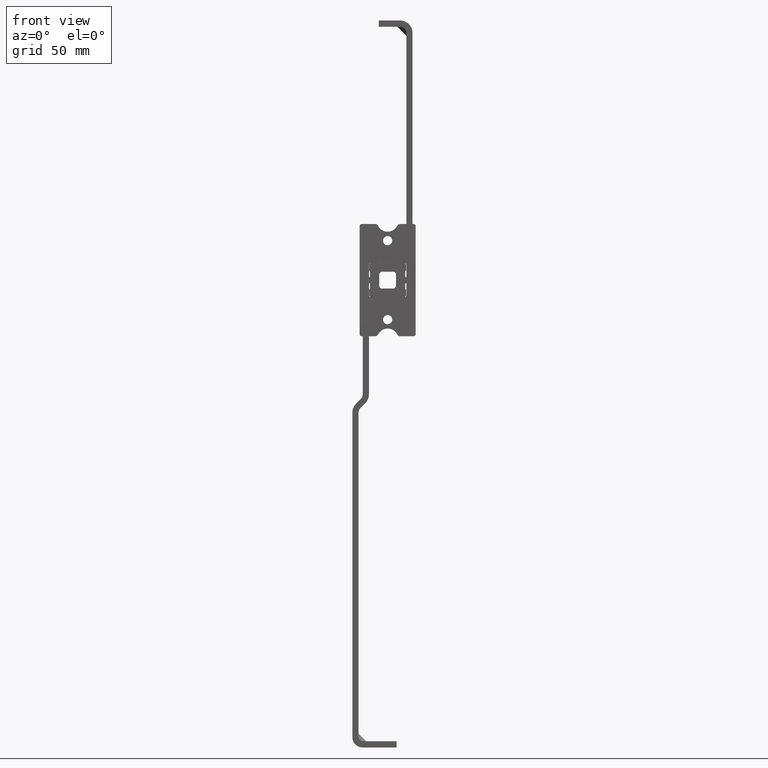
[diagram: clean part render]
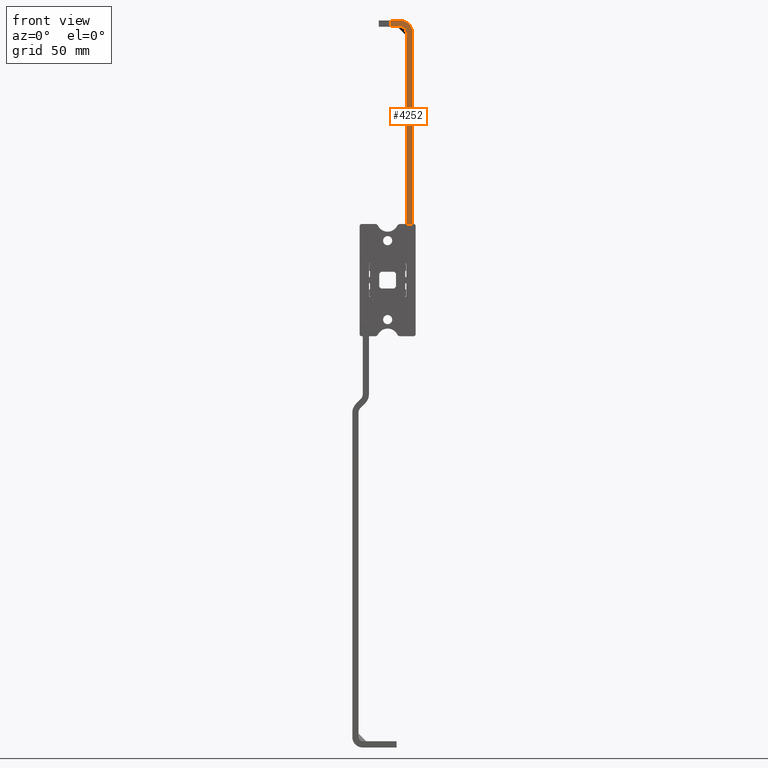
[diagram: same view with one face highlighted and labeled with its STEP entity id]
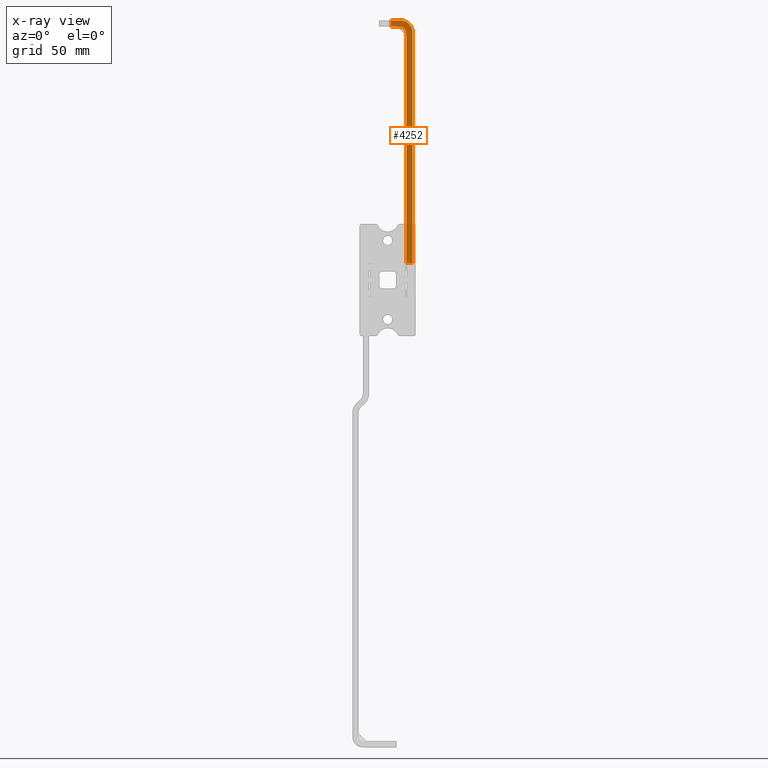
[diagram: x-ray of the same camera — body ghosted, the highlighted face saturated]
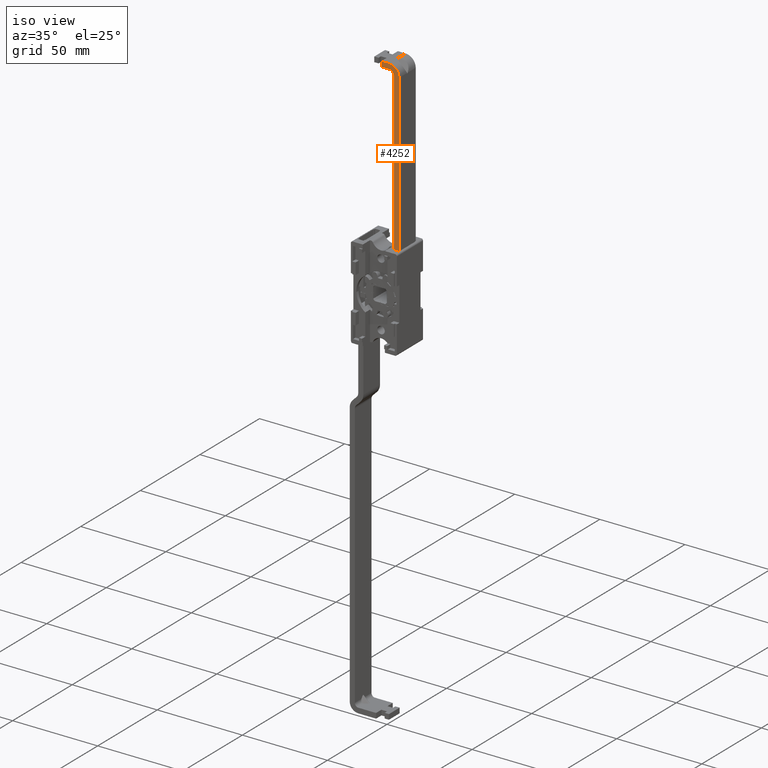
[diagram: same view with one face highlighted and labeled with its STEP entity id]
A machine part, front view. The second image highlights one B-rep face of the part: STEP entity #4252.
The next image is the same camera in x-ray: the body ghosted, the highlighted face saturated — about 0% of this face is hidden behind the body in this view.
A second angle (iso view) of the same face is appended — the face is thin or edge-on in the first view.
In plain terms, the highlighted face is a freeform B-spline surface patch.
Its self-contained STEP definition (entity closure, byte-faithful):
#2934=CARTESIAN_POINT('',(1.399999685016894,-7.000000332482269,125.000005937181600));
#2935=VERTEX_POINT('',#2934);
#2942=CARTESIAN_POINT('',(1.399999685016894,-7.000000332482269,122.000005794689400));
#2943=VERTEX_POINT('',#2942);
#2949=CARTESIAN_POINT('',(1.399999685016894,-7.000000332482269,122.000005794689400));
#2950=CARTESIAN_POINT('',(1.399999685016894,-7.000000332482269,125.000005937181600));
#2951=QUASI_UNIFORM_CURVE('',1,(#2949,#2950),.UNSPECIFIED.,.F.,.U.);
#2952=EDGE_CURVE('',#2943,#2935,#2951,.T.);
#3810=CARTESIAN_POINT('',(11.900000183740159,-7.000000332482220,8.180006222166409));
#3811=VERTEX_POINT('',#3810);
#3817=CARTESIAN_POINT('',(8.900000041247800,-7.000000332482220,8.180006222166409));
#3818=VERTEX_POINT('',#3817);
#3819=CARTESIAN_POINT('',(8.900000041247800,-7.000000332482220,8.180006222166409));
#3820=CARTESIAN_POINT('',(11.900000183740159,-7.000000332482220,8.180006222166409));
#3821=QUASI_UNIFORM_CURVE('',1,(#3819,#3820),.UNSPECIFIED.,.F.,.U.);
#3822=EDGE_CURVE('',#3818,#3811,#3821,.T.);
#4087=CARTESIAN_POINT('',(5.899999898755601,-7.000000332482269,122.000005794689400));
#4088=VERTEX_POINT('',#4087);
#4095=CARTESIAN_POINT('',(8.900000044703019,-7.000000332482269,118.999861671069790));
#4096=VERTEX_POINT('',#4095);
#4102=CARTESIAN_POINT('',(8.900000044703024,-7.000000332482269,118.999861671069790));
#4103=CARTESIAN_POINT('',(8.900059682800265,-7.000000332482269,120.242544587923970));
#4104=CARTESIAN_POINT('',(8.021371249920554,-7.000000332482269,121.121275191306690));
#4105=CARTESIAN_POINT('',(7.142682817040841,-7.000000332482269,122.000005794689430));
#4106=CARTESIAN_POINT('',(5.899999898755601,-7.000000332482269,122.000005794689400));
#4114=(BOUNDED_CURVE()B_SPLINE_CURVE(2,(#4102,#4103,#4104,#4105,#4106),.UNSPECIFIED.,.F.,.U.)B_SPLINE_CURVE_WITH_KNOTS((3,2,3),(0.0,0.500000000000000,1.0),.UNSPECIFIED.)CURVE()GEOMETRIC_REPRESENTATION_ITEM()RATIONAL_B_SPLINE_CURVE((1.0,0.923874941066045,1.0,0.923874941066045,1.0))REPRESENTATION_ITEM(''));
#4115=EDGE_CURVE('',#4096,#4088,#4114,.T.);
#4205=CARTESIAN_POINT('',(0.875524680446004,-7.000000332482220,130.835166889772100));
#4206=CARTESIAN_POINT('',(12.424475470157249,-7.000000332482220,130.835166889772100));
#4207=CARTESIAN_POINT('',(0.875524680446004,-7.000000332482220,2.344844225123888));
#4208=CARTESIAN_POINT('',(12.424475470157249,-7.000000332482220,2.344844225123888));
#4209=B_SPLINE_SURFACE_WITH_KNOTS('',1,1,((#4205,#4207),(#4206,#4208)),.UNSPECIFIED.,.F.,.F.,.U.,(2,2),(2,2),(0.0,11.548950789711240),(0.0,128.490322664648200),.UNSPECIFIED.);
#4210=ORIENTED_EDGE('',*,*,#2952,.F.);
#4211=CARTESIAN_POINT('',(1.399999685016894,-7.000000332482269,122.000005794689400));
#4212=CARTESIAN_POINT('',(5.899999898755601,-7.000000332482269,122.000005794689400));
#4213=QUASI_UNIFORM_CURVE('',1,(#4211,#4212),.UNSPECIFIED.,.F.,.U.);
#4214=EDGE_CURVE('',#2943,#4088,#4213,.T.);
#4215=ORIENTED_EDGE('',*,*,#4214,.T.);
#4216=ORIENTED_EDGE('',*,*,#4115,.F.);
#4217=CARTESIAN_POINT('',(8.900000044703019,-7.000000332482269,118.999861671069790));
#4218=CARTESIAN_POINT('',(8.900000041247800,-7.000000332482220,8.180006222166409));
#4219=QUASI_UNIFORM_CURVE('',1,(#4217,#4218),.UNSPECIFIED.,.F.,.U.);
#4220=EDGE_CURVE('',#4096,#3818,#4219,.T.);
#4221=ORIENTED_EDGE('',*,*,#4220,.T.);
#4222=ORIENTED_EDGE('',*,*,#3822,.T.);
#4223=CARTESIAN_POINT('',(11.900000183954401,-7.000000332482269,119.000056362026000));
#4224=VERTEX_POINT('',#4223);
#4225=CARTESIAN_POINT('',(11.900000183740159,-7.000000332482220,8.180006222166409));
#4226=CARTESIAN_POINT('',(11.900000183954401,-7.000000332482269,119.000056362026000));
#4227=QUASI_UNIFORM_CURVE('',1,(#4225,#4226),.UNSPECIFIED.,.F.,.U.);
#4228=EDGE_CURVE('',#3811,#4224,#4227,.T.);
#4229=ORIENTED_EDGE('',*,*,#4228,.T.);
#4230=CARTESIAN_POINT('',(5.899999898755590,-7.000000332482269,125.000005937181800));
#4231=VERTEX_POINT('',#4230);
#4232=CARTESIAN_POINT('',(11.900000183954409,-7.000000332482269,119.000056362026000));
#4233=CARTESIAN_POINT('',(11.899949474125789,-7.000000332482268,125.000005937181830));
#4234=CARTESIAN_POINT('',(5.899999898755660,-7.000000332482269,125.000005937181800));
#4242=(BOUNDED_CURVE()B_SPLINE_CURVE(2,(#4232,#4233,#4234),.UNSPECIFIED.,.F.,.U.)CURVE()GEOMETRIC_REPRESENTATION_ITEM()QUASI_UNIFORM_CURVE()RATIONAL_B_SPLINE_CURVE((1.0,0.707109769310654,1.0))REPRESENTATION_ITEM(''));
#4243=EDGE_CURVE('',#4224,#4231,#4242,.T.);
#4244=ORIENTED_EDGE('',*,*,#4243,.T.);
#4245=CARTESIAN_POINT('',(5.899999898755590,-7.000000332482269,125.000005937181800));
#4246=CARTESIAN_POINT('',(1.399999685016894,-7.000000332482269,125.000005937181600));
#4247=QUASI_UNIFORM_CURVE('',1,(#4245,#4246),.UNSPECIFIED.,.F.,.U.);
#4248=EDGE_CURVE('',#4231,#2935,#4247,.T.);
#4249=ORIENTED_EDGE('',*,*,#4248,.T.);
#4250=EDGE_LOOP('',(#4210,#4215,#4216,#4221,#4222,#4229,#4244,#4249));
#4251=FACE_OUTER_BOUND('',#4250,.T.);
#4252=ADVANCED_FACE('',(#4251),#4209,.F.);